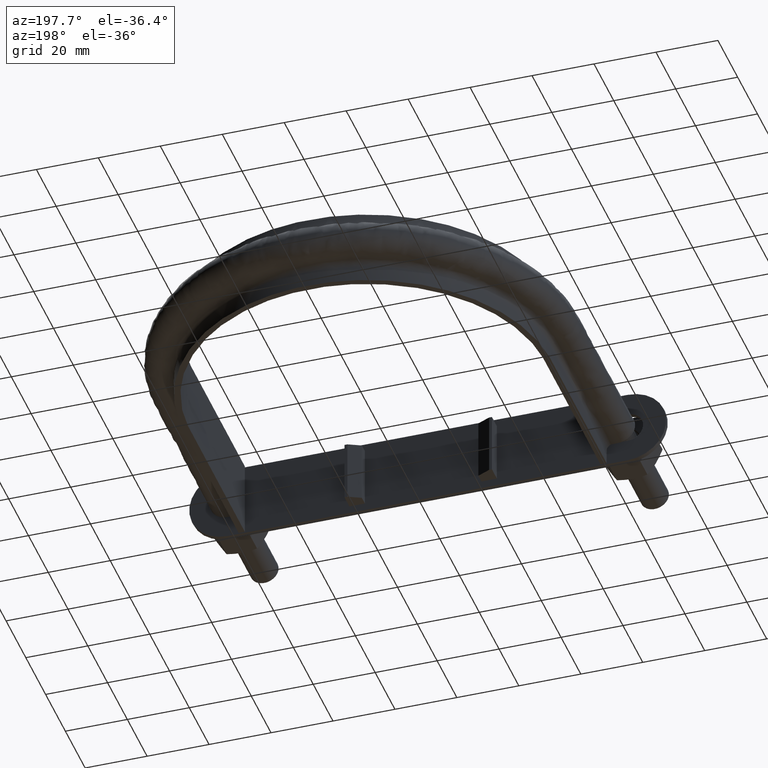
[diagram: clean part render]
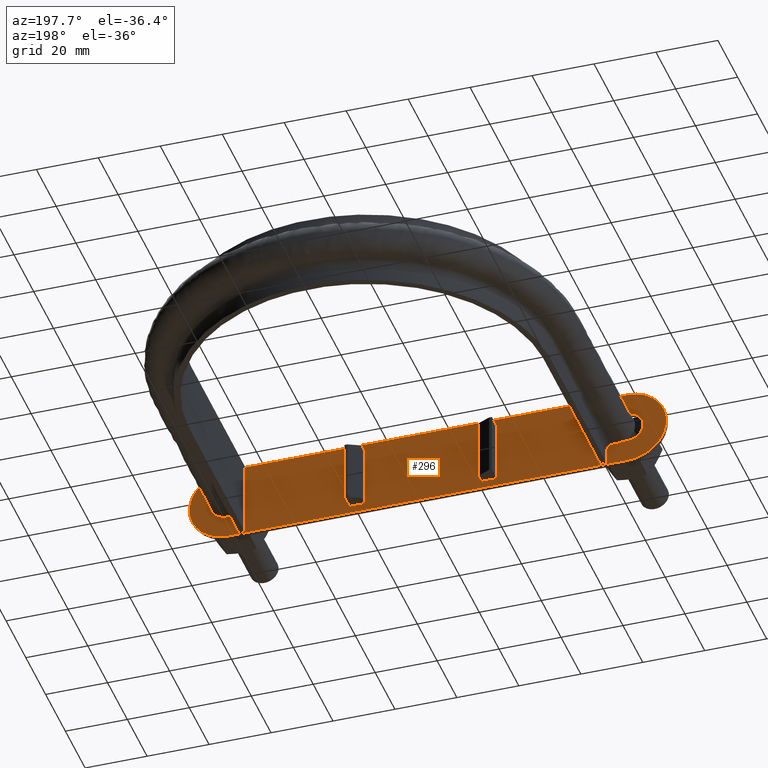
[diagram: same view with one face highlighted and labeled with its STEP entity id]
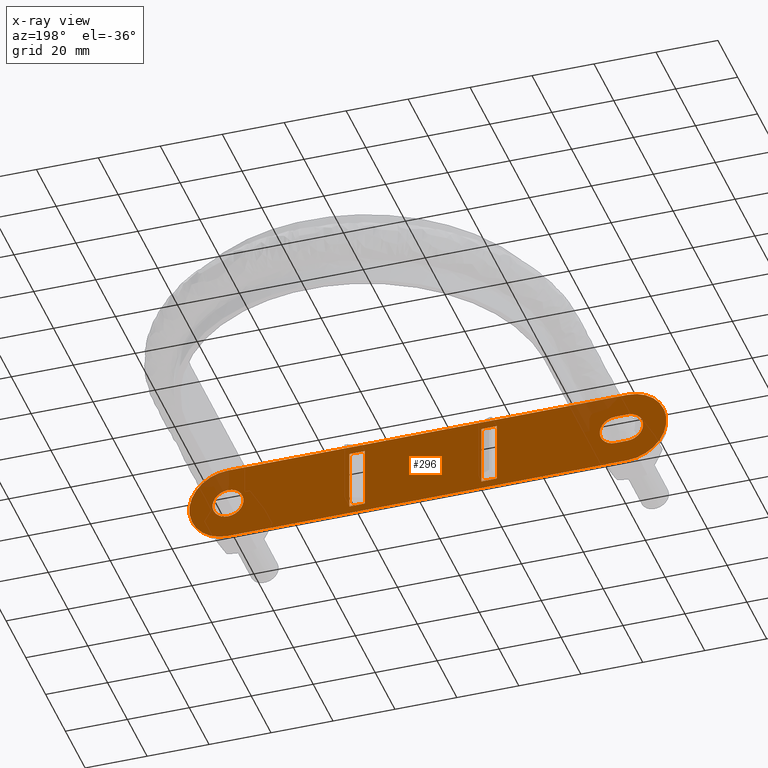
[diagram: x-ray of the same camera — body ghosted, the highlighted face saturated]
A machine part, auxiliary view. The second image highlights one B-rep face of the part: STEP entity #296.
The next image is the same camera in x-ray: the body ghosted, the highlighted face saturated — about 4% of this face is hidden behind the body in this view.
In plain terms, the highlighted planar face has unit normal (0, 1, 0).
Its self-contained STEP definition (entity closure, byte-faithful):
#296 = ADVANCED_FACE( '', ( #443, #444, #445, #446, #447 ), #448, .T. );
#443 = FACE_OUTER_BOUND( '', #1346, .T. );
#444 = FACE_BOUND( '', #1347, .T. );
#445 = FACE_BOUND( '', #1348, .T. );
#446 = FACE_BOUND( '', #1349, .T. );
#447 = FACE_BOUND( '', #1350, .T. );
#448 = PLANE( '', #1351 );
#1346 = EDGE_LOOP( '', ( #1716, #1717, #1718, #1719 ) );
#1347 = EDGE_LOOP( '', ( #1720, #1721, #1722, #1723 ) );
#1348 = EDGE_LOOP( '', ( #1724 ) );
#1349 = EDGE_LOOP( '', ( #1725, #1726, #1727, #1728 ) );
#1350 = EDGE_LOOP( '', ( #1729, #1730, #1731, #1732 ) );
#1351 = AXIS2_PLACEMENT_3D( '', #1733, #1734, #1735 );
#1716 = ORIENTED_EDGE( '', *, *, #2377, .T. );
#1717 = ORIENTED_EDGE( '', *, *, #2378, .T. );
#1718 = ORIENTED_EDGE( '', *, *, #2379, .T. );
#1719 = ORIENTED_EDGE( '', *, *, #2380, .T. );
#1720 = ORIENTED_EDGE( '', *, *, #2381, .T. );
#1721 = ORIENTED_EDGE( '', *, *, #2382, .T. );
#1722 = ORIENTED_EDGE( '', *, *, #2383, .F. );
#1723 = ORIENTED_EDGE( '', *, *, #2384, .F. );
#1724 = ORIENTED_EDGE( '', *, *, #2385, .F. );
#1725 = ORIENTED_EDGE( '', *, *, #2386, .F. );
#1726 = ORIENTED_EDGE( '', *, *, #2387, .F. );
#1727 = ORIENTED_EDGE( '', *, *, #2388, .F. );
#1728 = ORIENTED_EDGE( '', *, *, #2389, .F. );
#1729 = ORIENTED_EDGE( '', *, *, #2390, .F. );
#1730 = ORIENTED_EDGE( '', *, *, #2391, .T. );
#1731 = ORIENTED_EDGE( '', *, *, #2392, .T. );
#1732 = ORIENTED_EDGE( '', *, *, #2393, .F. );
#1733 = CARTESIAN_POINT( '', ( -66.0000000000000, 36.8000000000000, 6.64905865105452E-010 ) );
#1734 = DIRECTION( '', ( 7.17937538736490E-049, 1.00000000000000, 5.34725563500670E-016 ) );
#1735 = DIRECTION( '', ( 1.00000000000000, 0.000000000000000, -1.34262804649995E-033 ) );
#2377 = EDGE_CURVE( '', #2637, #2638, #2639, .T. );
#2378 = EDGE_CURVE( '', #2638, #2640, #2641, .T. );
#2379 = EDGE_CURVE( '', #2640, #2642, #2643, .T. );
#2380 = EDGE_CURVE( '', #2642, #2637, #2644, .T. );
#2381 = EDGE_CURVE( '', #2645, #2646, #2647, .T. );
#2382 = EDGE_CURVE( '', #2646, #2648, #2649, .T. );
#2383 = EDGE_CURVE( '', #2650, #2648, #2651, .T. );
#2384 = EDGE_CURVE( '', #2645, #2650, #2652, .T. );
#2385 = EDGE_CURVE( '', #2653, #2653, #2654, .T. );
#2386 = EDGE_CURVE( '', #2655, #2656, #2657, .T. );
#2387 = EDGE_CURVE( '', #2658, #2655, #2659, .T. );
#2388 = EDGE_CURVE( '', #2660, #2658, #2661, .T. );
#2389 = EDGE_CURVE( '', #2656, #2660, #2662, .T. );
#2390 = EDGE_CURVE( '', #2663, #2664, #2665, .T. );
#2391 = EDGE_CURVE( '', #2663, #2666, #2667, .T. );
#2392 = EDGE_CURVE( '', #2666, #2668, #2669, .T. );
#2393 = EDGE_CURVE( '', #2664, #2668, #2670, .T. );
#2637 = VERTEX_POINT( '', #3261 );
#2638 = VERTEX_POINT( '', #3262 );
#2639 = CIRCLE( '', #3263, 12.5000000000000 );
#2640 = VERTEX_POINT( '', #3264 );
#2641 = LINE( '', #3265, #3266 );
#2642 = VERTEX_POINT( '', #3267 );
#2643 = CIRCLE( '', #3268, 12.5000000000000 );
#2644 = LINE( '', #3269, #3270 );
#2645 = VERTEX_POINT( '', #3271 );
#2646 = VERTEX_POINT( '', #3272 );
#2647 = LINE( '', #3273, #3274 );
#2648 = VERTEX_POINT( '', #3275 );
#2649 = LINE( '', #3276, #3277 );
#2650 = VERTEX_POINT( '', #3278 );
#2651 = LINE( '', #3279, #3280 );
#2652 = LINE( '', #3281, #3282 );
#2653 = VERTEX_POINT( '', #3283 );
#2654 = CIRCLE( '', #3284, 5.00000000000000 );
#2655 = VERTEX_POINT( '', #3285 );
#2656 = VERTEX_POINT( '', #3286 );
#2657 = CIRCLE( '', #3287, 5.00000000000000 );
#2658 = VERTEX_POINT( '', #3288 );
#2659 = LINE( '', #3289, #3290 );
#2660 = VERTEX_POINT( '', #3291 );
#2661 = CIRCLE( '', #3292, 5.00000000000000 );
#2662 = LINE( '', #3293, #3294 );
#2663 = VERTEX_POINT( '', #3295 );
#2664 = VERTEX_POINT( '', #3296 );
#2665 = LINE( '', #3297, #3298 );
#2666 = VERTEX_POINT( '', #3299 );
#2667 = LINE( '', #3300, #3301 );
#2668 = VERTEX_POINT( '', #3302 );
#2669 = LINE( '', #3303, #3304 );
#2670 = LINE( '', #3305, #3306 );
#3261 = CARTESIAN_POINT( '', ( -66.0000000001260, 36.8000000000000, -12.4999999993351 ) );
#3262 = CARTESIAN_POINT( '', ( -65.9999999999371, 36.8000000000000, 12.5000000006649 ) );
#3263 = AXIS2_PLACEMENT_3D( '', #3863, #3864, #3865 );
#3264 = CARTESIAN_POINT( '', ( 63.0000000000629, 36.8000000000000, 12.5000000000151 ) );
#3265 = CARTESIAN_POINT( '', ( -66.0000000000000, 36.8000000000000, 12.5000000006649 ) );
#3266 = VECTOR( '', #3866, 1000.00000000000 );
#3267 = CARTESIAN_POINT( '', ( 62.9999999998741, 36.8000000000000, -12.5000000006347 ) );
#3268 = AXIS2_PLACEMENT_3D( '', #3867, #3868, #3869 );
#3269 = CARTESIAN_POINT( '', ( -66.0000000001259, 36.8000000000000, -12.4999999993351 ) );
#3270 = VECTOR( '', #3870, 1000.00000000000 );
#3271 = CARTESIAN_POINT( '', ( -23.8000000001008, 36.8000000000000, -9.99999999976023 ) );
#3272 = CARTESIAN_POINT( '', ( -18.8000000001008, 36.8000000000000, -9.99999999981060 ) );
#3273 = CARTESIAN_POINT( '', ( -66.0000000001007, 36.8000000000000, -9.99999999933510 ) );
#3274 = VECTOR( '', #3871, 1000.00000000000 );
#3275 = CARTESIAN_POINT( '', ( -18.7999999998993, 36.8000000000000, 10.0000000001894 ) );
#3276 = CARTESIAN_POINT( '', ( -18.8000000000001, 36.8000000000000, 1.89403483387061E-010 ) );
#3277 = VECTOR( '', #3872, 1000.00000000000 );
#3278 = CARTESIAN_POINT( '', ( -23.7999999998993, 36.8000000000000, 10.0000000002398 ) );
#3279 = CARTESIAN_POINT( '', ( -23.7999999998993, 36.8000000000000, 10.0000000002398 ) );
#3280 = VECTOR( '', #3873, 1000.00000000000 );
#3281 = CARTESIAN_POINT( '', ( -23.8000000001008, 36.8000000000000, -9.99999999976023 ) );
#3282 = VECTOR( '', #3874, 1000.00000000000 );
#3283 = CARTESIAN_POINT( '', ( 63.0000000000000, 36.8000000000000, 4.99999999936532 ) );
#3284 = AXIS2_PLACEMENT_3D( '', #3875, #3876, #3877 );
#3285 = CARTESIAN_POINT( '', ( -66.0000000000504, 36.8000000000000, -4.99999999933509 ) );
#3286 = CARTESIAN_POINT( '', ( -65.9999999999748, 36.8000000000000, 5.00000000064476 ) );
#3287 = AXIS2_PLACEMENT_3D( '', #3878, #3879, #3880 );
#3288 = CARTESIAN_POINT( '', ( -62.0000000000504, 36.8000000000000, -4.99999999937539 ) );
#3289 = CARTESIAN_POINT( '', ( -66.0000000000504, 36.8000000000000, -4.99999999933509 ) );
#3290 = VECTOR( '', #3881, 1000.00000000000 );
#3291 = CARTESIAN_POINT( '', ( -61.9999999999748, 36.8000000000000, 5.00000000062461 ) );
#3292 = AXIS2_PLACEMENT_3D( '', #3882, #3883, #3884 );
#3293 = CARTESIAN_POINT( '', ( -61.9999999999496, 36.8000000000000, 5.00000000062461 ) );
#3294 = VECTOR( '', #3885, 1000.00000000000 );
#3295 = CARTESIAN_POINT( '', ( 18.7999999998993, 36.8000000000000, -10.0000000002398 ) );
#3296 = CARTESIAN_POINT( '', ( 18.8000000001008, 36.8000000000000, 9.99999999976023 ) );
#3297 = CARTESIAN_POINT( '', ( 18.7999999998993, 36.8000000000000, -10.0000000001894 ) );
#3298 = VECTOR( '', #3886, 1000.00000000000 );
#3299 = CARTESIAN_POINT( '', ( 23.7999999998993, 36.8000000000000, -10.0000000002398 ) );
#3300 = CARTESIAN_POINT( '', ( -66.0000000000000, 36.8000000000000, -10.0000000002398 ) );
#3301 = VECTOR( '', #3887, 1000.00000000000 );
#3302 = CARTESIAN_POINT( '', ( 23.8000000001008, 36.8000000000000, 9.99999999976023 ) );
#3303 = CARTESIAN_POINT( '', ( 23.8000000000000, 36.8000000000000, -2.39757564519794E-010 ) );
#3304 = VECTOR( '', #3888, 1000.00000000000 );
#3305 = CARTESIAN_POINT( '', ( 23.8000000001007, 36.8000000000000, 9.99999999976023 ) );
#3306 = VECTOR( '', #3889, 1000.00000000000 );
#3863 = CARTESIAN_POINT( '', ( -66.0000000000000, 36.8000000000000, 6.64905865105452E-010 ) );
#3864 = DIRECTION( '', ( 1.34262804649995E-033, 1.00000000000000, 5.34725563500670E-016 ) );
#3865 = DIRECTION( '', ( 1.32393347017134E-064, -5.34725563500670E-016, 1.00000000000000 ) );
#3866 = DIRECTION( '', ( 1.00000000000000, -1.34262804938052E-033, 5.38700090211948E-027 ) );
#3867 = CARTESIAN_POINT( '', ( 63.0000000000000, 36.8000000000000, -6.34679268846246E-010 ) );
#3868 = DIRECTION( '', ( 1.34262804649995E-033, 1.00000000000000, 5.34725563500670E-016 ) );
#3869 = DIRECTION( '', ( 1.32393347017134E-064, -5.34725563500670E-016, 1.00000000000000 ) );
#3870 = DIRECTION( '', ( -1.00000000000000, -5.38700058195641E-027, 1.00743302589043E-011 ) );
#3871 = DIRECTION( '', ( 1.00000000000000, 5.38700058195641E-027, -1.00743302589043E-011 ) );
#3872 = DIRECTION( '', ( 1.00742030025083E-011, -5.34725563500670E-016, 1.00000000000000 ) );
#3873 = DIRECTION( '', ( 1.00000000000000, 5.38700058195641E-027, -1.00743302589043E-011 ) );
#3874 = DIRECTION( '', ( 1.00742030025083E-011, -5.34725563500670E-016, 1.00000000000000 ) );
#3875 = CARTESIAN_POINT( '', ( 63.0000000000000, 36.8000000000000, -6.34681003569721E-010 ) );
#3876 = DIRECTION( '', ( 1.34262804649995E-033, 1.00000000000000, 5.34725563500670E-016 ) );
#3877 = DIRECTION( '', ( 0.000000000000000, -5.34725563500670E-016, 1.00000000000000 ) );
#3878 = CARTESIAN_POINT( '', ( -66.0000000000000, 36.8000000000000, 6.64907599828928E-010 ) );
#3879 = DIRECTION( '', ( 1.34262804649995E-033, 1.00000000000000, 5.34725563500670E-016 ) );
#3880 = DIRECTION( '', ( 0.000000000000000, -5.34725563500670E-016, 1.00000000000000 ) );
#3881 = DIRECTION( '', ( -1.00000000000000, -5.38700058195641E-027, 1.00743302589043E-011 ) );
#3882 = CARTESIAN_POINT( '', ( -62.0000000000000, 36.8000000000000, 6.24610278793311E-010 ) );
#3883 = DIRECTION( '', ( 1.34262804649995E-033, 1.00000000000000, 5.34725563500670E-016 ) );
#3884 = DIRECTION( '', ( 0.000000000000000, -5.34725563500670E-016, 1.00000000000000 ) );
#3885 = DIRECTION( '', ( 1.00000000000000, -1.34262804938052E-033, 5.38700090211948E-027 ) );
#3886 = DIRECTION( '', ( 1.00742030025083E-011, -5.34725563500670E-016, 1.00000000000000 ) );
#3887 = DIRECTION( '', ( 1.00000000000000, -1.34262804818398E-033, 3.14933416654139E-027 ) );
#3888 = DIRECTION( '', ( 1.00742030025083E-011, -5.34725563500670E-016, 1.00000000000000 ) );
#3889 = DIRECTION( '', ( 1.00000000000000, -1.34262804818398E-033, 3.14933416654139E-027 ) );